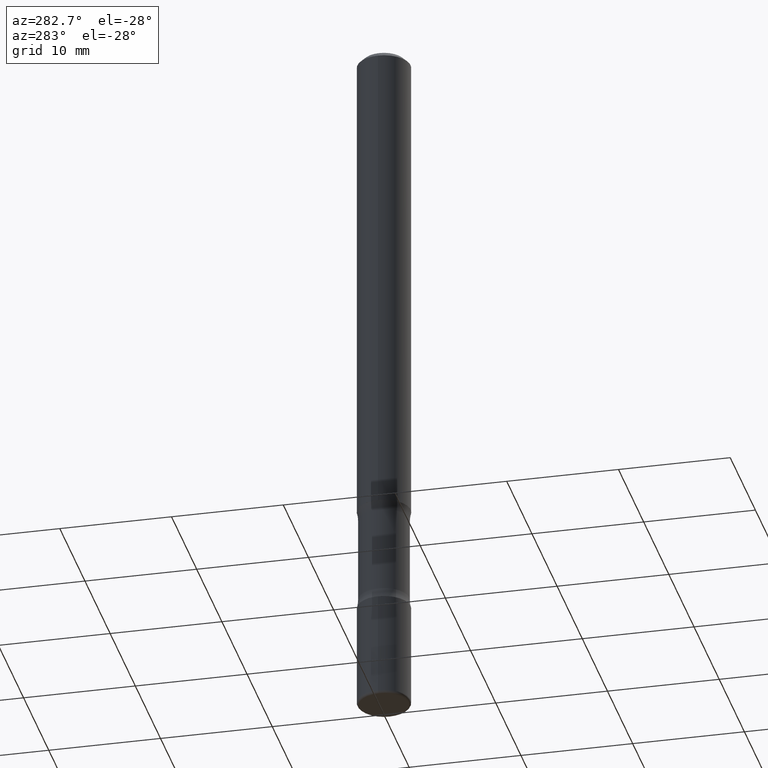
[diagram: clean part render]
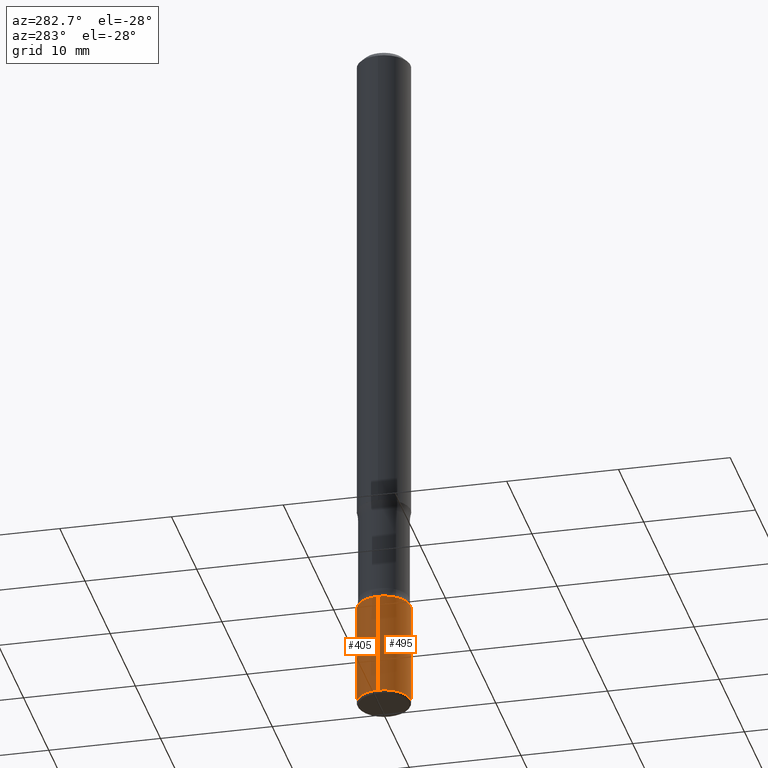
[diagram: same view with one multi-face feature highlighted, each face labeled with its STEP entity id]
A machine part, auxiliary view. The highlighted faces form ONE feature: a constant-radius fillet chain: 2 tangent blend faces with common blend radius 2.3813 mm. The faces share edges in the B-rep.
Their STEP definitions:
[1] entity #495 (Cylinder):
#4 = VERTEX_POINT ( 'NONE', #237 ) ;
#11 = EDGE_CURVE ( 'NONE', #555, #4, #404, .T. ) ;
#19 = CARTESIAN_POINT ( 'NONE',  ( 0.09375000000000002776, -6.546527510330876027E-16, 4.571415727308691207E-30 ) ) ;
#28 = DIRECTION ( 'NONE',  ( -2.445468806185136597E-29, 3.491481338843145583E-15, 1.000000000000000000 ) ) ;
#31 = CARTESIAN_POINT ( 'NONE',  ( 5.196621213143415268E-29, -7.419397845041685201E-15, -2.125000000000000000 ) ) ;
#57 = CARTESIAN_POINT ( 'NONE',  ( -0.09375000000000005551, -8.027654718944337792E-15, -2.489999999999999769 ) ) ;
#67 = CYLINDRICAL_SURFACE ( 'NONE', #146, 0.09375000000000002776 ) ;
#87 = CARTESIAN_POINT ( 'NONE',  ( 0.09375000000000005551, -9.348441284752520009E-15, -2.489999999999999769 ) ) ;
#107 = DIRECTION ( 'NONE',  ( -2.445468806185136877E-29, 3.491481338843145188E-15, 1.000000000000000000 ) ) ;
#141 = VERTEX_POINT ( 'NONE', #87 ) ;
#146 = AXIS2_PLACEMENT_3D ( 'NONE', #288, #444, #496 ) ;
#188 = AXIS2_PLACEMENT_3D ( 'NONE', #31, #28, #204 ) ;
#198 = EDGE_LOOP ( 'NONE', ( #452, #283, #307, #389 ) ) ;
#204 = DIRECTION ( 'NONE',  ( 1.000000000000000000, -6.982962677686270655E-15, 0.000000000000000000 ) ) ;
#219 = EDGE_CURVE ( 'NONE', #141, #456, #397, .T. ) ;
#226 = DIRECTION ( 'NONE',  ( 1.000000000000000000, -6.982962677686270655E-15, 0.000000000000000000 ) ) ;
#237 = CARTESIAN_POINT ( 'NONE',  ( -0.09375000000000002776, -7.390459374605464534E-15, -2.125000000000000000 ) ) ;
#238 = DIRECTION ( 'NONE',  ( -2.445468806185136877E-29, 3.491481338843145188E-15, 1.000000000000000000 ) ) ;
#264 = CARTESIAN_POINT ( 'NONE',  ( 6.089217327400989947E-29, -8.693788533719431716E-15, -2.489999999999999769 ) ) ;
#283 = ORIENTED_EDGE ( 'NONE', *, *, #355, .T. ) ;
#288 = CARTESIAN_POINT ( 'NONE',  ( 0.000000000000000000, 0.000000000000000000, 0.000000000000000000 ) ) ;
#290 = CARTESIAN_POINT ( 'NONE',  ( -0.09375000000000002776, 6.661338147750941215E-16, -4.611501647113975397E-30 ) ) ;
#297 = VECTOR ( 'NONE', #107, 39.37007874015748143 ) ;
#307 = ORIENTED_EDGE ( 'NONE', *, *, #219, .T. ) ;
#321 = EDGE_CURVE ( 'NONE', #4, #456, #541, .T. ) ;
#329 = FACE_OUTER_BOUND ( 'NONE', #198, .T. ) ;
#355 = EDGE_CURVE ( 'NONE', #555, #141, #363, .T. ) ;
#363 = CIRCLE ( 'NONE', #475, 0.09375000000000002776 ) ;
#370 = VECTOR ( 'NONE', #238, 39.37007874015748143 ) ;
#389 = ORIENTED_EDGE ( 'NONE', *, *, #321, .F. ) ;
#397 = LINE ( 'NONE', #19, #370 ) ;
#404 = LINE ( 'NONE', #290, #297 ) ;
#444 = DIRECTION ( 'NONE',  ( -2.445468806185136597E-29, 3.491481338843145583E-15, 1.000000000000000000 ) ) ;
#452 = ORIENTED_EDGE ( 'NONE', *, *, #11, .F. ) ;
#456 = VERTEX_POINT ( 'NONE', #507 ) ;
#475 = AXIS2_PLACEMENT_3D ( 'NONE', #264, #523, #226 ) ;
#495 = ADVANCED_FACE ( 'NONE', ( #329 ), #67, .T. ) ;
#496 = DIRECTION ( 'NONE',  ( 1.000000000000000000, -6.982962677686265922E-15, 4.876176775795935793E-29 ) ) ;
#507 = CARTESIAN_POINT ( 'NONE',  ( 0.09375000000000002776, -8.074050596074771916E-15, -2.125000000000000000 ) ) ;
#523 = DIRECTION ( 'NONE',  ( -2.445468806185136597E-29, 3.491481338843145583E-15, 1.000000000000000000 ) ) ;
#541 = CIRCLE ( 'NONE', #188, 0.09375000000000002776 ) ;
#555 = VERTEX_POINT ( 'NONE', #57 ) ;
[2] entity #405 (Cylinder):
#4 = VERTEX_POINT ( 'NONE', #237 ) ;
#11 = EDGE_CURVE ( 'NONE', #555, #4, #404, .T. ) ;
#12 = DIRECTION ( 'NONE',  ( -2.445468806185136597E-29, 3.491481338843145583E-15, 1.000000000000000000 ) ) ;
#14 = ORIENTED_EDGE ( 'NONE', *, *, #361, .F. ) ;
#19 = CARTESIAN_POINT ( 'NONE',  ( 0.09375000000000002776, -6.546527510330876027E-16, 4.571415727308691207E-30 ) ) ;
#33 = CIRCLE ( 'NONE', #234, 0.09375000000000002776 ) ;
#55 = FACE_OUTER_BOUND ( 'NONE', #280, .T. ) ;
#57 = CARTESIAN_POINT ( 'NONE',  ( -0.09375000000000005551, -8.027654718944337792E-15, -2.489999999999999769 ) ) ;
#87 = CARTESIAN_POINT ( 'NONE',  ( 0.09375000000000005551, -9.348441284752520009E-15, -2.489999999999999769 ) ) ;
#99 = AXIS2_PLACEMENT_3D ( 'NONE', #266, #177, #419 ) ;
#107 = DIRECTION ( 'NONE',  ( -2.445468806185136877E-29, 3.491481338843145188E-15, 1.000000000000000000 ) ) ;
#141 = VERTEX_POINT ( 'NONE', #87 ) ;
#177 = DIRECTION ( 'NONE',  ( -2.445468806185136597E-29, 3.491481338843145583E-15, 1.000000000000000000 ) ) ;
#179 = EDGE_CURVE ( 'NONE', #141, #555, #553, .T. ) ;
#191 = CARTESIAN_POINT ( 'NONE',  ( 6.089217327400989947E-29, -8.693788533719431716E-15, -2.489999999999999769 ) ) ;
#219 = EDGE_CURVE ( 'NONE', #141, #456, #397, .T. ) ;
#234 = AXIS2_PLACEMENT_3D ( 'NONE', #465, #12, #528 ) ;
#237 = CARTESIAN_POINT ( 'NONE',  ( -0.09375000000000002776, -7.390459374605464534E-15, -2.125000000000000000 ) ) ;
#238 = DIRECTION ( 'NONE',  ( -2.445468806185136877E-29, 3.491481338843145188E-15, 1.000000000000000000 ) ) ;
#266 = CARTESIAN_POINT ( 'NONE',  ( 0.000000000000000000, 0.000000000000000000, 0.000000000000000000 ) ) ;
#278 = CYLINDRICAL_SURFACE ( 'NONE', #99, 0.09375000000000002776 ) ;
#280 = EDGE_LOOP ( 'NONE', ( #421, #316, #14, #294 ) ) ;
#290 = CARTESIAN_POINT ( 'NONE',  ( -0.09375000000000002776, 6.661338147750941215E-16, -4.611501647113975397E-30 ) ) ;
#294 = ORIENTED_EDGE ( 'NONE', *, *, #219, .F. ) ;
#297 = VECTOR ( 'NONE', #107, 39.37007874015748143 ) ;
#316 = ORIENTED_EDGE ( 'NONE', *, *, #11, .T. ) ;
#322 = DIRECTION ( 'NONE',  ( 1.000000000000000000, -6.982962677686270655E-15, 0.000000000000000000 ) ) ;
#357 = AXIS2_PLACEMENT_3D ( 'NONE', #191, #362, #322 ) ;
#361 = EDGE_CURVE ( 'NONE', #456, #4, #33, .T. ) ;
#362 = DIRECTION ( 'NONE',  ( -2.445468806185136597E-29, 3.491481338843145583E-15, 1.000000000000000000 ) ) ;
#370 = VECTOR ( 'NONE', #238, 39.37007874015748143 ) ;
#397 = LINE ( 'NONE', #19, #370 ) ;
#404 = LINE ( 'NONE', #290, #297 ) ;
#405 = ADVANCED_FACE ( 'NONE', ( #55 ), #278, .T. ) ;
#419 = DIRECTION ( 'NONE',  ( 1.000000000000000000, -6.982962677686265922E-15, 4.876176775795935793E-29 ) ) ;
#421 = ORIENTED_EDGE ( 'NONE', *, *, #179, .T. ) ;
#456 = VERTEX_POINT ( 'NONE', #507 ) ;
#465 = CARTESIAN_POINT ( 'NONE',  ( 5.196621213143415268E-29, -7.419397845041685201E-15, -2.125000000000000000 ) ) ;
#507 = CARTESIAN_POINT ( 'NONE',  ( 0.09375000000000002776, -8.074050596074771916E-15, -2.125000000000000000 ) ) ;
#528 = DIRECTION ( 'NONE',  ( 1.000000000000000000, -6.982962677686270655E-15, 0.000000000000000000 ) ) ;
#553 = CIRCLE ( 'NONE', #357, 0.09375000000000002776 ) ;
#555 = VERTEX_POINT ( 'NONE', #57 ) ;